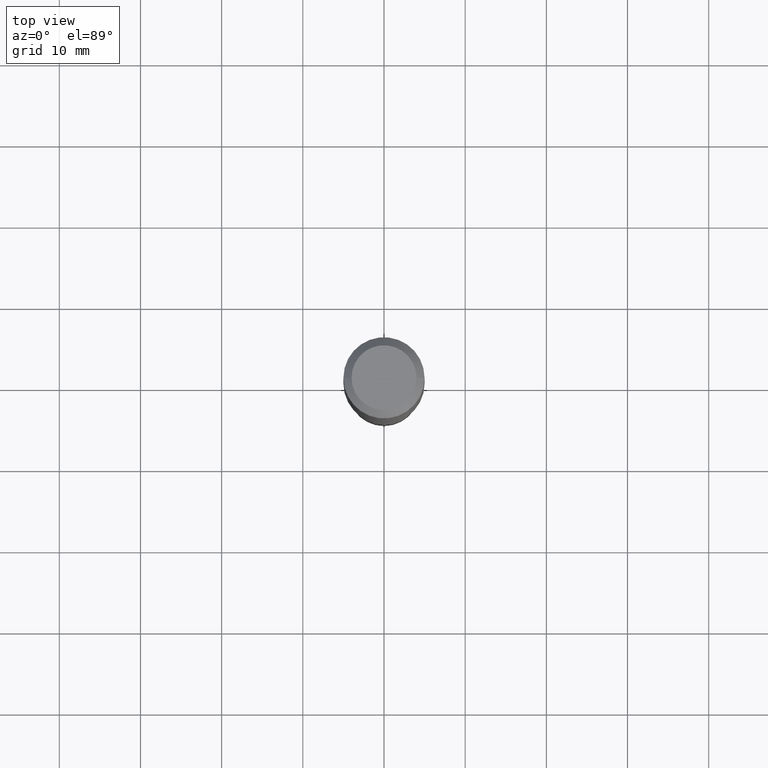
[diagram: clean part render]
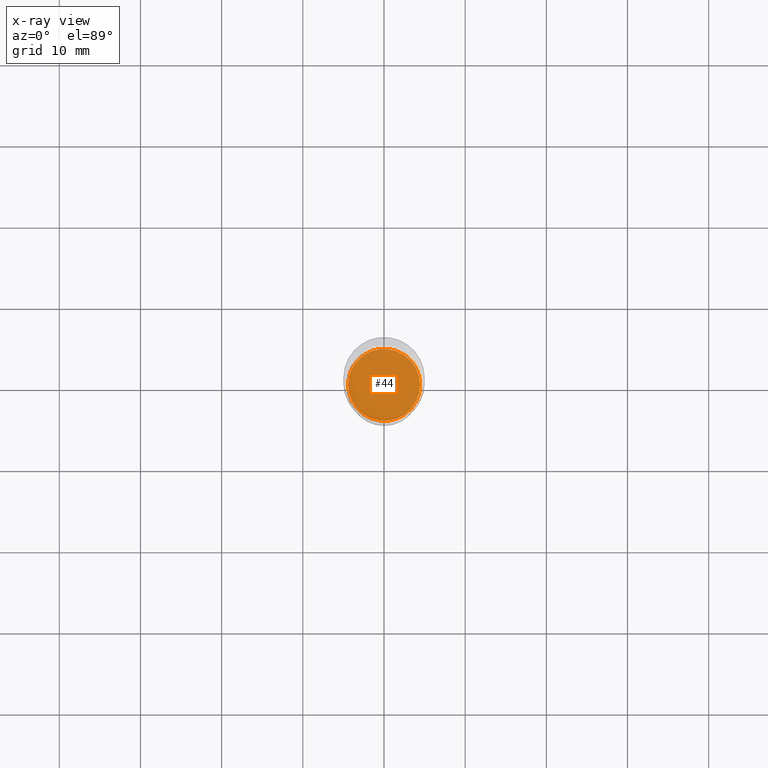
[diagram: x-ray — body ghosted, one internal face saturated and labeled with its STEP entity id]
A machine part, top view, then the same camera in x-ray: the body is ghosted and one INTERNAL B-rep face — a face not visible from any outside direction — is saturated and labeled: STEP entity #44.
In plain terms, the highlighted planar face has unit normal (-0, 0, 1).
Its self-contained STEP definition (entity closure, byte-faithful):
#3 = EDGE_CURVE ( 'NONE', #490, #112, #452, .T. ) ;
#25 = EDGE_LOOP ( 'NONE', ( #470, #385 ) ) ;
#44 = ADVANCED_FACE ( 'NONE', ( #472 ), #170, .F. ) ;
#96 = DIRECTION ( 'NONE',  ( -2.438088387897960049E-29, 3.491481338843145188E-15, 1.000000000000000000 ) ) ;
#112 = VERTEX_POINT ( 'NONE', #187 ) ;
#163 = DIRECTION ( 'NONE',  ( -2.445468806185136597E-29, 3.491481338843145583E-15, 1.000000000000000000 ) ) ;
#167 = DIRECTION ( 'NONE',  ( 1.000000000000000000, -6.982962677686265922E-15, 0.000000000000000000 ) ) ;
#170 = PLANE ( 'NONE',  #268 ) ;
#187 = CARTESIAN_POINT ( 'NONE',  ( -0.1746999999999999942, -5.752612068360772906E-15, -2.003899999999999793 ) ) ;
#210 = DIRECTION ( 'NONE',  ( -2.445468806185136597E-29, 3.491481338843145583E-15, 1.000000000000000000 ) ) ;
#225 = AXIS2_PLACEMENT_3D ( 'NONE', #331, #163, #167 ) ;
#243 = DIRECTION ( 'NONE',  ( 1.000000000000000000, -6.982962677686265922E-15, 0.000000000000000000 ) ) ;
#268 = AXIS2_PLACEMENT_3D ( 'NONE', #410, #96, #448 ) ;
#331 = CARTESIAN_POINT ( 'NONE',  ( 4.900474940714395139E-29, -6.996579454907778893E-15, -2.003899999999999793 ) ) ;
#362 = CARTESIAN_POINT ( 'NONE',  ( 4.900474940714395139E-29, -6.996579454907778893E-15, -2.003899999999999793 ) ) ;
#385 = ORIENTED_EDGE ( 'NONE', *, *, #412, .F. ) ;
#406 = CIRCLE ( 'NONE', #453, 0.1746999999999999942 ) ;
#410 = CARTESIAN_POINT ( 'NONE',  ( 2.712313344102791931E-29, -1.013015140367928166E-14, -2.003899999999999793 ) ) ;
#412 = EDGE_CURVE ( 'NONE', #112, #490, #406, .T. ) ;
#448 = DIRECTION ( 'NONE',  ( 1.000000000000000000, -6.982962677686265922E-15, 4.876176775795935793E-29 ) ) ;
#452 = CIRCLE ( 'NONE', #225, 0.1746999999999999942 ) ;
#453 = AXIS2_PLACEMENT_3D ( 'NONE', #362, #210, #243 ) ;
#454 = CARTESIAN_POINT ( 'NONE',  ( 0.1746999999999999942, -8.216503034699569763E-15, -2.003899999999999793 ) ) ;
#470 = ORIENTED_EDGE ( 'NONE', *, *, #3, .F. ) ;
#472 = FACE_OUTER_BOUND ( 'NONE', #25, .T. ) ;
#490 = VERTEX_POINT ( 'NONE', #454 ) ;